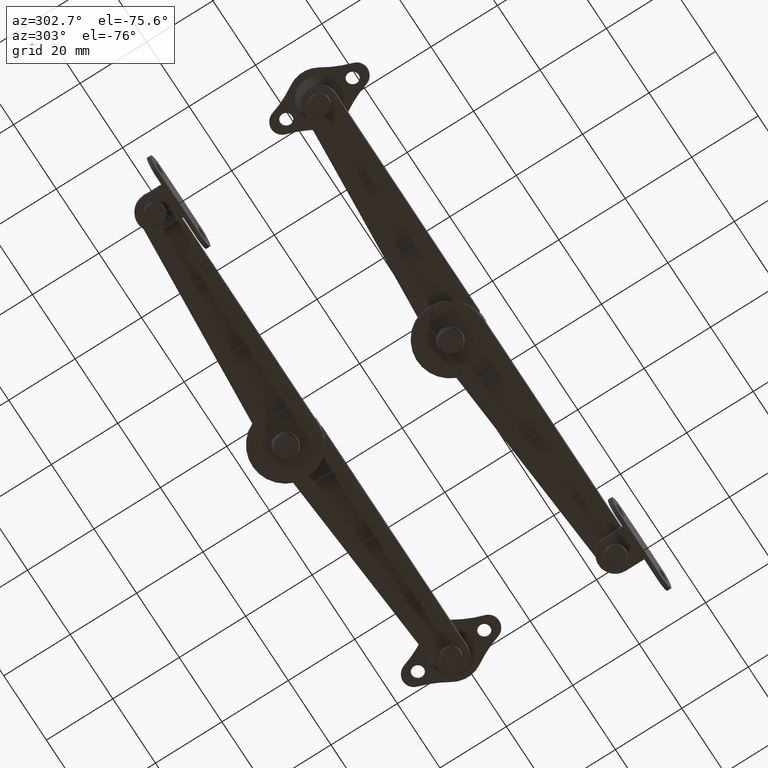
[diagram: clean part render]
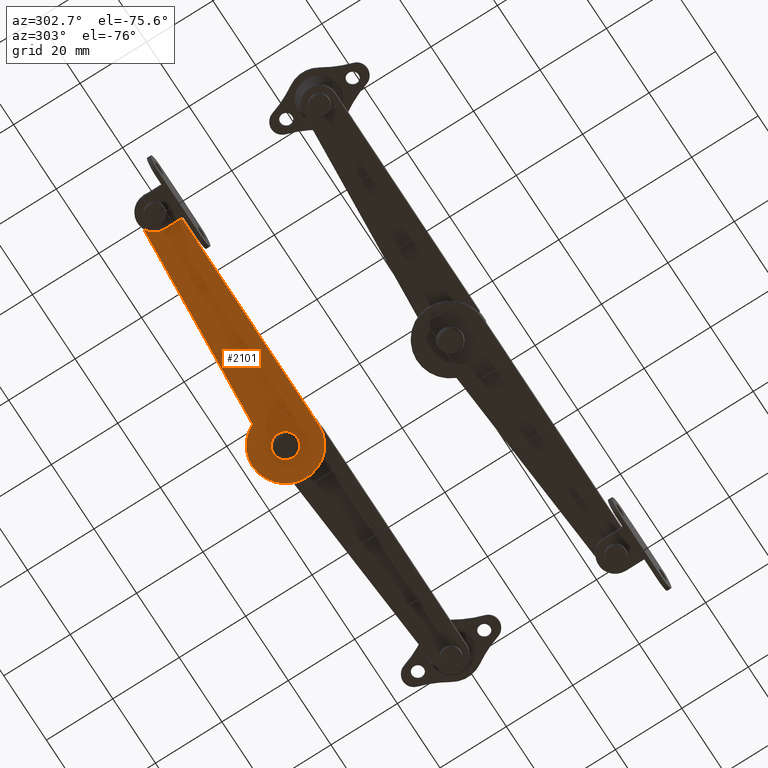
[diagram: same view with one face highlighted and labeled with its STEP entity id]
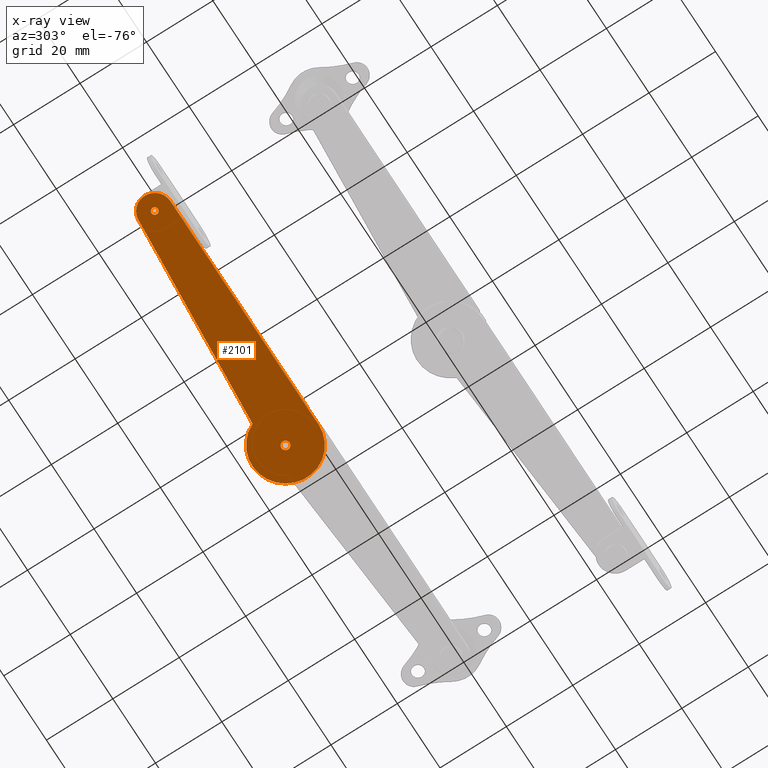
[diagram: x-ray of the same camera — body ghosted, the highlighted face saturated]
A machine part, auxiliary view. The second image highlights one B-rep face of the part: STEP entity #2101.
The next image is the same camera in x-ray: the body ghosted, the highlighted face saturated — about 0% of this face is hidden behind the body in this view.
In plain terms, the highlighted planar face has unit normal (-0, -0, -1).
Its self-contained STEP definition (entity closure, byte-faithful):
#244=FACE_BOUND('',#635,.T.);
#245=FACE_BOUND('',#636,.T.);
#320=PLANE('',#2364);
#436=FACE_OUTER_BOUND('',#634,.T.);
#634=EDGE_LOOP('',(#1839,#1840,#1841,#1842));
#635=EDGE_LOOP('',(#1843));
#636=EDGE_LOOP('',(#1844));
#801=CIRCLE('',#2355,1.25);
#802=CIRCLE('',#2357,1.);
#803=CIRCLE('',#2360,10.);
#804=CIRCLE('',#2363,4.75);
#923=LINE('',#3612,#1022);
#926=LINE('',#3620,#1025);
#1022=VECTOR('',#2953,69.5);
#1025=VECTOR('',#2962,60.8546954375881);
#1179=VERTEX_POINT('',#3603);
#1180=VERTEX_POINT('',#3606);
#1181=VERTEX_POINT('',#3609);
#1182=VERTEX_POINT('',#3611);
#1183=VERTEX_POINT('',#3615);
#1184=VERTEX_POINT('',#3619);
#1407=EDGE_CURVE('',#1179,#1179,#801,.T.);
#1408=EDGE_CURVE('',#1180,#1180,#802,.T.);
#1410=EDGE_CURVE('',#1182,#1181,#923,.T.);
#1412=EDGE_CURVE('',#1183,#1182,#803,.T.);
#1414=EDGE_CURVE('',#1184,#1183,#926,.T.);
#1416=EDGE_CURVE('',#1181,#1184,#804,.T.);
#1839=ORIENTED_EDGE('',*,*,#1416,.T.);
#1840=ORIENTED_EDGE('',*,*,#1414,.T.);
#1841=ORIENTED_EDGE('',*,*,#1412,.T.);
#1842=ORIENTED_EDGE('',*,*,#1410,.T.);
#1843=ORIENTED_EDGE('',*,*,#1407,.F.);
#1844=ORIENTED_EDGE('',*,*,#1408,.F.);
#2101=ADVANCED_FACE('',(#436,#244,#245),#320,.T.);
#2355=AXIS2_PLACEMENT_3D('',#3604,#2944,#2945);
#2357=AXIS2_PLACEMENT_3D('',#3607,#2948,#2949);
#2360=AXIS2_PLACEMENT_3D('',#3616,#2957,#2958);
#2363=AXIS2_PLACEMENT_3D('',#3623,#2966,#2967);
#2364=AXIS2_PLACEMENT_3D('',#3624,#2968,#2969);
#2944=DIRECTION('center_axis',(0.,0.,1.));
#2945=DIRECTION('ref_axis',(-1.,0.,0.));
#2948=DIRECTION('center_axis',(0.,0.,1.));
#2949=DIRECTION('ref_axis',(-1.,0.,0.));
#2953=DIRECTION('',(1.,0.,0.));
#2957=DIRECTION('center_axis',(0.,0.,1.));
#2958=DIRECTION('ref_axis',(0.916515138991578,0.39999999999906,0.));
#2962=DIRECTION('',(-0.997246238420361,0.0741615800562579,0.));
#2966=DIRECTION('center_axis',(0.,0.,1.));
#2967=DIRECTION('ref_axis',(0.,-1.,0.));
#2968=DIRECTION('center_axis',(0.,0.,1.));
#2969=DIRECTION('ref_axis',(1.,0.,0.));
#3603=CARTESIAN_POINT('',(1.25,1.53080849893419E-16,0.));
#3604=CARTESIAN_POINT('Origin',(0.,0.,0.));
#3606=CARTESIAN_POINT('',(70.5,-5.25,0.));
#3607=CARTESIAN_POINT('Origin',(69.5,-5.25,0.));
#3609=CARTESIAN_POINT('',(69.5,-10.,0.));
#3611=CARTESIAN_POINT('',(-1.83697019872103E-15,-10.,0.));
#3612=CARTESIAN_POINT('',(-1.83697019872103E-15,-10.,0.));
#3615=CARTESIAN_POINT('',(9.16515138991578,3.9999999999906,0.));
#3616=CARTESIAN_POINT('Origin',(0.,0.,0.));
#3619=CARTESIAN_POINT('',(69.8522675052672,-0.513080367503286,0.));
#3620=CARTESIAN_POINT('',(69.8522675052672,-0.513080367503286,0.));
#3623=CARTESIAN_POINT('Origin',(69.5,-5.25,0.));
#3624=CARTESIAN_POINT('Origin',(31.7374279601123,-3.33520886226292,0.));